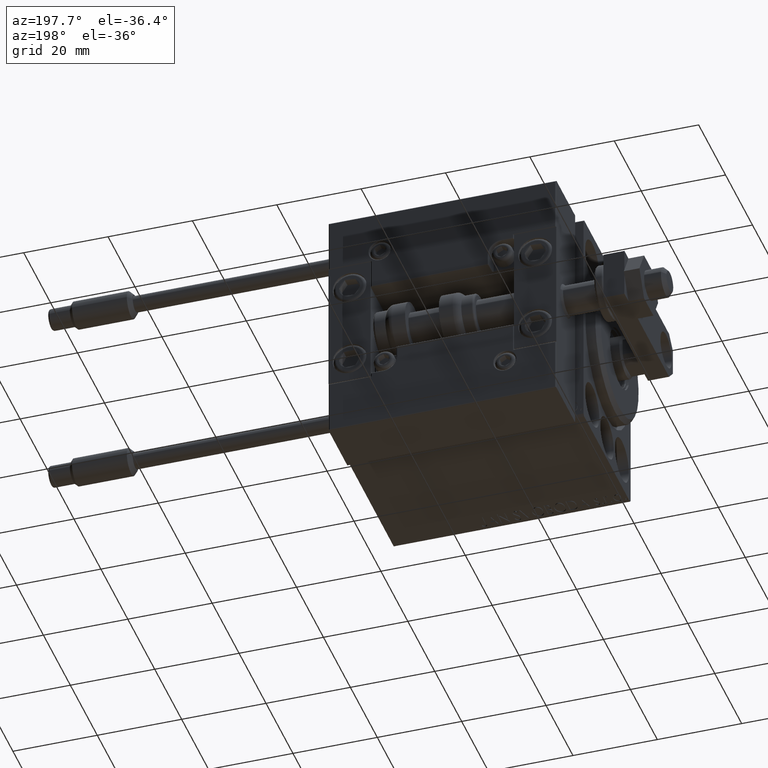
[diagram: clean part render]
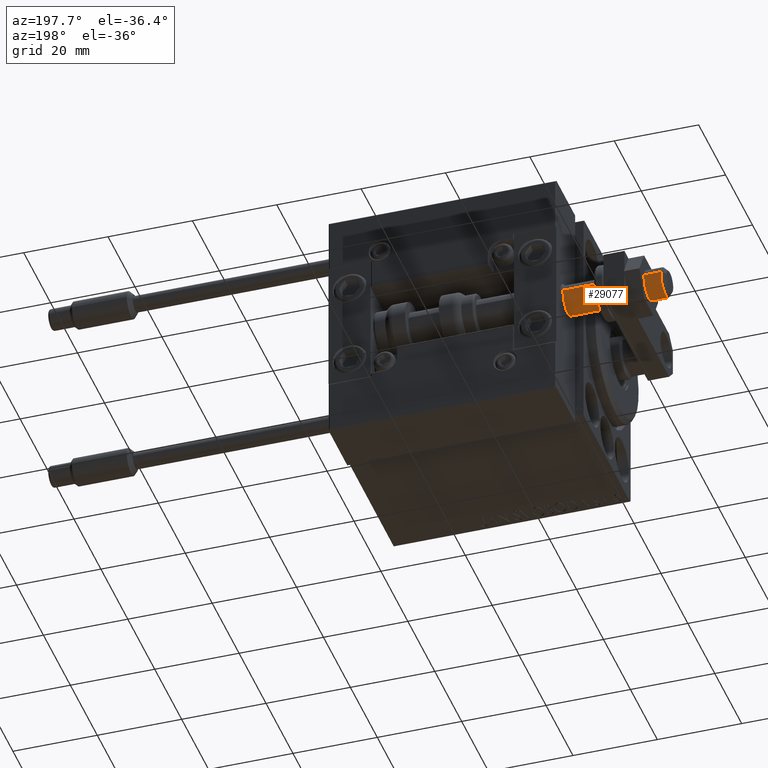
[diagram: same view with one face highlighted and labeled with its STEP entity id]
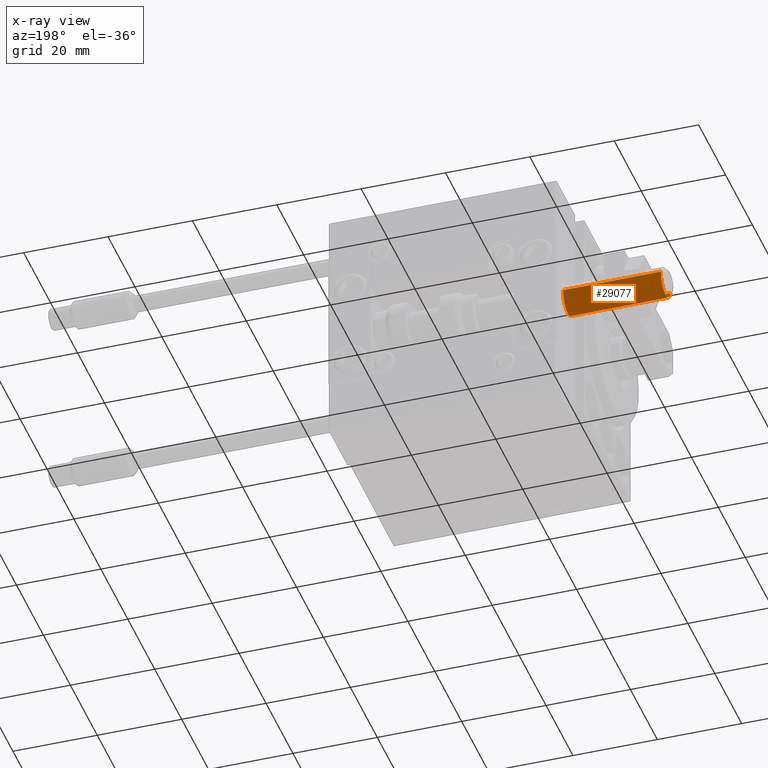
[diagram: x-ray of the same camera — body ghosted, the highlighted face saturated]
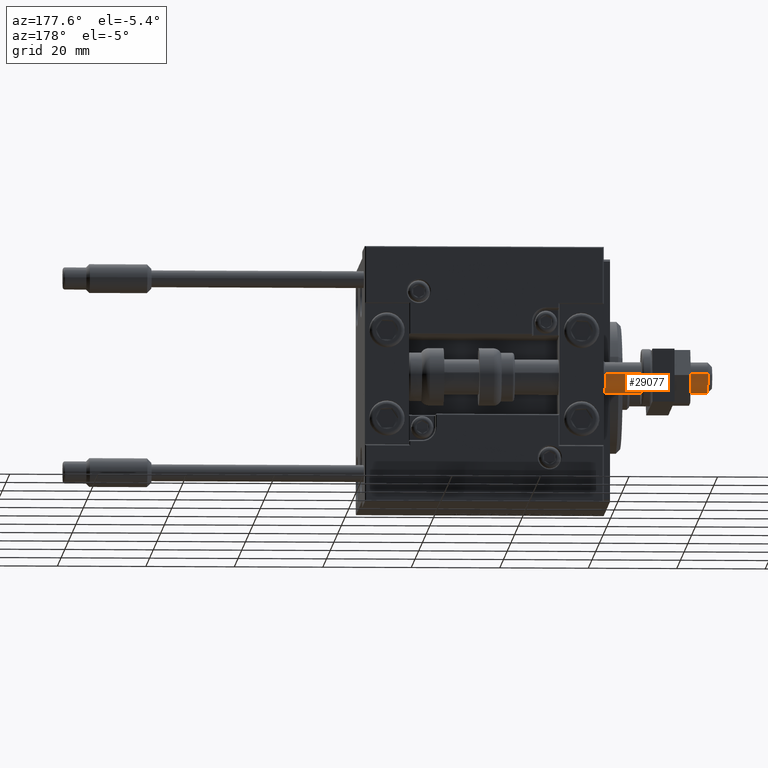
[diagram: same view with one face highlighted and labeled with its STEP entity id]
A machine part, auxiliary view. The second image highlights one B-rep face of the part: STEP entity #29077.
The next image is the same camera in x-ray: the body ghosted, the highlighted face saturated — about 0% of this face is hidden behind the body in this view.
A second angle (auxiliary view) of the same face is appended — the face is thin or edge-on in the first view.
In plain terms, the highlighted cylindrical surface (edge-blend (fillet) strip) has radius 3.5 mm, axis along (1, -0, -0).
Its self-contained STEP definition (entity closure, byte-faithful):
#220 = CARTESIAN_POINT ( 'NONE',  ( 3.500000000000000000, 0.000000000000000000, -22.69999999999999929 ) ) ;
#2092 = DIRECTION ( 'NONE',  ( 1.000000000000000000, 0.000000000000000000, 0.000000000000000000 ) ) ;
#2608 = DIRECTION ( 'NONE',  ( 0.000000000000000000, 0.000000000000000000, -1.000000000000000000 ) ) ;
#9422 = ORIENTED_EDGE ( 'NONE', *, *, #37559, .T. ) ;
#9775 = CIRCLE ( 'NONE', #38299, 3.500000000000000000 ) ;
#10063 = ORIENTED_EDGE ( 'NONE', *, *, #13131, .F. ) ;
#11636 = VECTOR ( 'NONE', #18604, 1000.000000000000000 ) ;
#13131 = EDGE_CURVE ( 'NONE', #20242, #16348, #45044, .T. ) ;
#14161 = CARTESIAN_POINT ( 'NONE',  ( -3.500000000000000000, 4.286263797015736595E-16, -22.69999999999999929 ) ) ;
#14401 = VECTOR ( 'NONE', #25931, 1000.000000000000000 ) ;
#16348 = VERTEX_POINT ( 'NONE', #32525 ) ;
#16403 = DIRECTION ( 'NONE',  ( 0.000000000000000000, 0.000000000000000000, 1.000000000000000000 ) ) ;
#18604 = DIRECTION ( 'NONE',  ( -0.000000000000000000, -0.000000000000000000, 1.000000000000000000 ) ) ;
#19955 = CYLINDRICAL_SURFACE ( 'NONE', #47455, 3.500000000000000000 ) ;
#20242 = VERTEX_POINT ( 'NONE', #21229 ) ;
#20248 = CARTESIAN_POINT ( 'NONE',  ( 0.000000000000000000, 0.000000000000000000, -21.69999999999999218 ) ) ;
#20506 = ORIENTED_EDGE ( 'NONE', *, *, #30365, .T. ) ;
#21229 = CARTESIAN_POINT ( 'NONE',  ( -3.500000000000000000, 4.286263797015736595E-16, -21.69999999999999218 ) ) ;
#21429 = AXIS2_PLACEMENT_3D ( 'NONE', #25581, #2608, #2092 ) ;
#23534 = EDGE_CURVE ( 'NONE', #20242, #30136, #9775, .T. ) ;
#23789 = DIRECTION ( 'NONE',  ( 1.000000000000000000, 0.000000000000000000, 0.000000000000000000 ) ) ;
#23858 = CARTESIAN_POINT ( 'NONE',  ( 3.500000000000000000, 0.000000000000000000, 1.500000000000030864 ) ) ;
#25476 = CARTESIAN_POINT ( 'NONE',  ( 0.000000000000000000, 0.000000000000000000, -22.69999999999999929 ) ) ;
#25581 = CARTESIAN_POINT ( 'NONE',  ( 0.000000000000000000, 0.000000000000000000, 1.500000000000030864 ) ) ;
#25931 = DIRECTION ( 'NONE',  ( -0.000000000000000000, -0.000000000000000000, 1.000000000000000000 ) ) ;
#29077 = ADVANCED_FACE ( 'NONE', ( #35736 ), #19955, .T. ) ;
#30136 = VERTEX_POINT ( 'NONE', #43668 ) ;
#30207 = ORIENTED_EDGE ( 'NONE', *, *, #23534, .T. ) ;
#30365 = EDGE_CURVE ( 'NONE', #30136, #46974, #35151, .T. ) ;
#30956 = DIRECTION ( 'NONE',  ( -1.000000000000000000, 0.000000000000000000, 0.000000000000000000 ) ) ;
#32525 = CARTESIAN_POINT ( 'NONE',  ( -3.500000000000000000, 4.286263797015736595E-16, 1.500000000000030864 ) ) ;
#35151 = LINE ( 'NONE', #220, #11636 ) ;
#35736 = FACE_OUTER_BOUND ( 'NONE', #43694, .T. ) ;
#37559 = EDGE_CURVE ( 'NONE', #46974, #16348, #49917, .T. ) ;
#38299 = AXIS2_PLACEMENT_3D ( 'NONE', #20248, #16403, #30956 ) ;
#40768 = DIRECTION ( 'NONE',  ( -0.000000000000000000, -0.000000000000000000, 1.000000000000000000 ) ) ;
#43668 = CARTESIAN_POINT ( 'NONE',  ( 3.500000000000000000, 0.000000000000000000, -21.69999999999999218 ) ) ;
#43694 = EDGE_LOOP ( 'NONE', ( #10063, #30207, #20506, #9422 ) ) ;
#45044 = LINE ( 'NONE', #14161, #14401 ) ;
#46974 = VERTEX_POINT ( 'NONE', #23858 ) ;
#47455 = AXIS2_PLACEMENT_3D ( 'NONE', #25476, #40768, #23789 ) ;
#49917 = CIRCLE ( 'NONE', #21429, 3.500000000000000000 ) ;